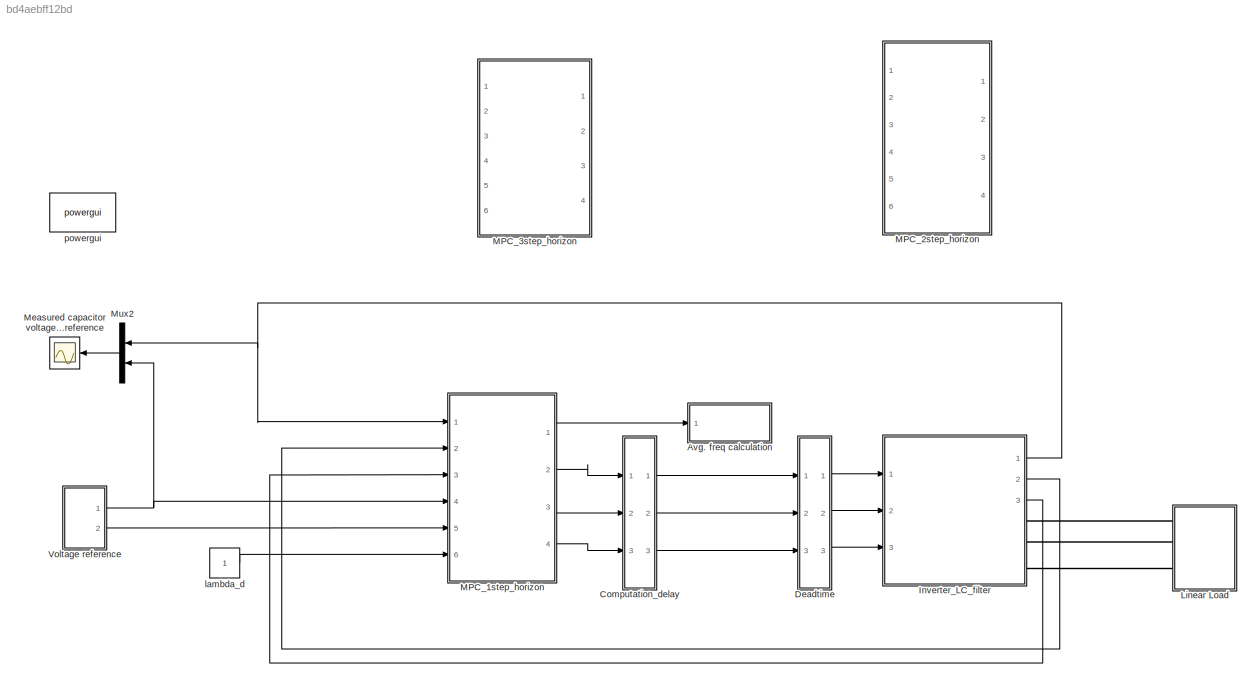
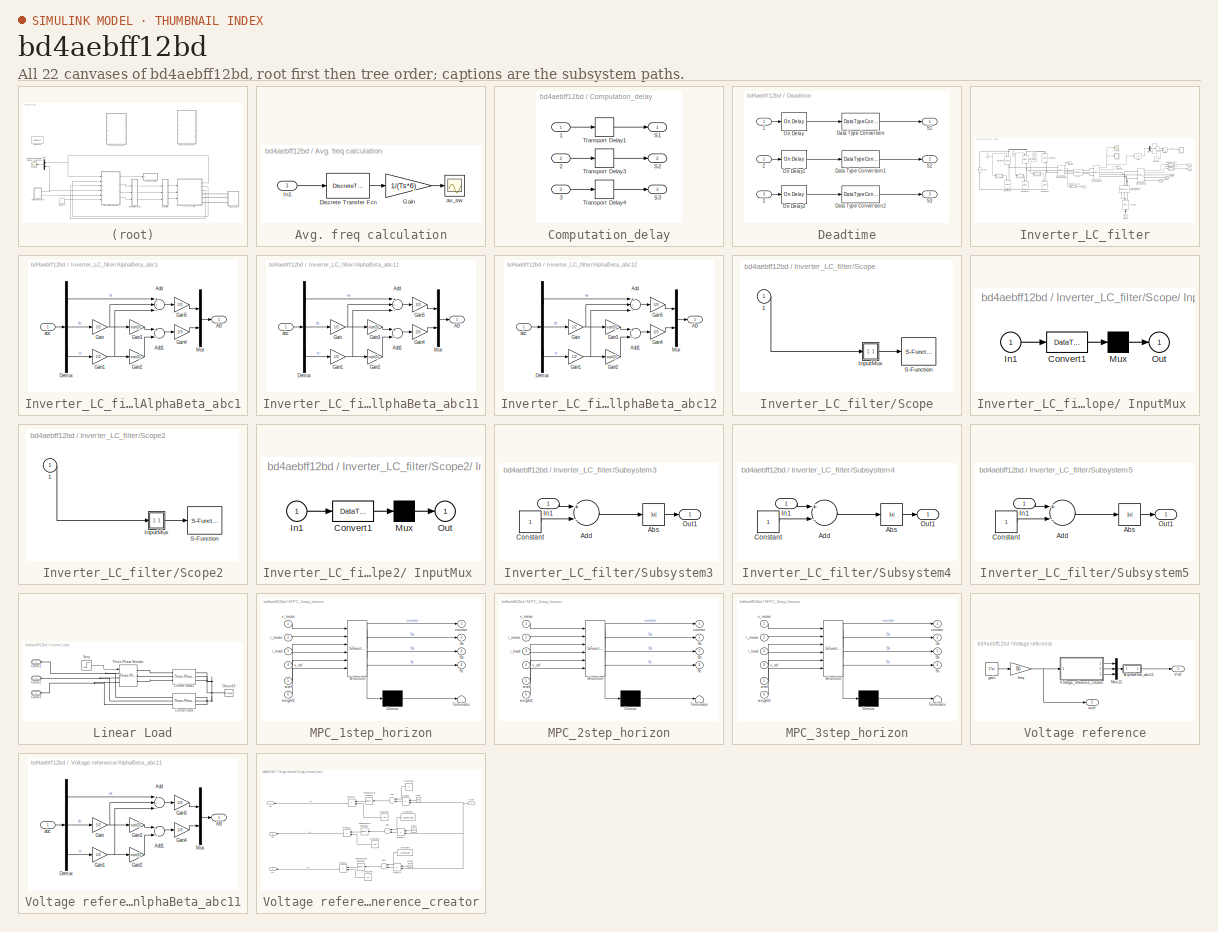
[diagram: thumbnail index - all 22 canvases of the model, root first then tree order]
MODEL slx_bd4aebff12bd
KIND model
CONFIG AbsTol = auto
CONFIG EnableMultiTasking = off
CONFIG FixedStep = 1e-6
CONFIG InitFcn = %initialization file\nclear \nRl=0.1;\nRload=60;\nL=2.4e-3;\nC=14e-6;\nwref=2*pi*50;\nVdc=700;\nTs=20e-6;\ns=tf('s');\nVac=325;\nTd=4e-6;\n\n\n% Converter states\nv0 = 0;\nv1 = 2/3*Vdc;\nv2 = 1/3*Vdc + 1j*sqrt(3)/3*Vdc;\nv3 = -1/3*Vdc + 1j*sqrt(3)/3*Vdc;\nv4 = -2/3*Vdc;\nv5 = -1/3*Vdc - 1j*sqrt(3)/3*Vdc;\nv6 = 1/3*Vdc - 1j*sqrt(3)/3*Vdc;\nv7 = 0;\nv = [v0 v1 v2 v3 v4 v5 v6 v7];\nstates = [0 0 0;1 0 0;1 1 0;0 1 0;0 1 1;0 ...<+722ch>
CONFIG MaxStep = 1
CONFIG MinStep = auto
CONFIG RelTol = 1e-3
CONFIG SampleTimeConstraint = Unconstrained
CONFIG Solver = VariableStepAuto
CONFIG SolverName = VariableStepAuto
CONFIG StartTime = 0.0
CONFIG StopTime = 0.1
BLOCK [SubSystem] Avg. freq calculation
  Ports = [1]
  RequestExecContextInheritance = off
BLOCK [DiscreteTransferFcn] Avg. freq calculation/Discrete Transfer Fcn
  Denominator = [1 -0.9998]
  InputPortMap = u0
  Numerator = [0.0002]
  Ports = [1, 1]
BLOCK [Gain] Avg. freq calculation/Gain
  Gain = 1/(Ts*6)
  OutDataTypeStr = Inherit: Inherit via internal rule
  ParamDataTypeStr = Inherit: Inherit via internal rule
  SaturateOnIntegerOverflow = off
BLOCK [Inport] Avg. freq calculation/In1
  IconDisplay = Port number
BLOCK [Scope] Avg. freq calculation/av_sw
  Floating = off
  NumInputPorts = 1
  Ports = [1]
  ScopeSpecificationString = Simulink.scopes.TimeScopeBlockCfg('CurrentConfiguration', extmgr.ConfigurationSet(extmgr.Configuration('Core','General UI',true),extmgr.Configuration('Core','Source UI',true),extmgr.Configuration('Sources','WiredSimulink',true,'DataLoggingVariableName','av_sw','DataLogging',true,'DataLoggingSaveFormat','Array'),extmgr.Configuration('Visuals','Time Domain',true,'SerializedDisplays',{struct('MinYLim...<+1502ch>
BLOCK [SubSystem] Computation_delay
  Ports = [3, 3]
  RequestExecContextInheritance = off
BLOCK [Inport] Computation_delay/1
  IconDisplay = Port number
BLOCK [Inport] Computation_delay/2
  IconDisplay = Port number
  Port = 2
BLOCK [Inport] Computation_delay/3
  IconDisplay = Port number
  Port = 3
BLOCK [Outport] Computation_delay/S1
  IconDisplay = Port number
  VectorParamsAs1DForOutWhenUnconnected = off
BLOCK [Outport] Computation_delay/S2
  IconDisplay = Port number
  Port = 2
  VectorParamsAs1DForOutWhenUnconnected = off
BLOCK [Outport] Computation_delay/S3
  IconDisplay = Port number
  Port = 3
  VectorParamsAs1DForOutWhenUnconnected = off
BLOCK [TransportDelay] Computation_delay/Transport Delay1
  DelayTime = 1*Ts
  Ports = [1, 1]
BLOCK [TransportDelay] Computation_delay/Transport Delay3
  DelayTime = 1*Ts
  Ports = [1, 1]
BLOCK [TransportDelay] Computation_delay/Transport Delay4
  DelayTime = 1*Ts
  Ports = [1, 1]
BLOCK [SubSystem] Deadtime
  Ports = [3, 3]
  RequestExecContextInheritance = off
BLOCK [Inport] Deadtime/1
  IconDisplay = Port number
BLOCK [Inport] Deadtime/2
  IconDisplay = Port number
  Port = 2
BLOCK [Inport] Deadtime/3
  IconDisplay = Port number
  Port = 3
BLOCK [DataTypeConversion] Deadtime/Data Type Conversion
  OutDataTypeStr = double
  RndMeth = Floor
  SaturateOnIntegerOverflow = off
BLOCK [DataTypeConversion] Deadtime/Data Type Conversion1
  OutDataTypeStr = double
  RndMeth = Floor
  SaturateOnIntegerOverflow = off
BLOCK [DataTypeConversion] Deadtime/Data Type Conversion2
  OutDataTypeStr = double
  RndMeth = Floor
  SaturateOnIntegerOverflow = off
BLOCK [Reference] Deadtime/On Delay  REF=powerlib_meascontrol/Logic/On Delay
  Ports = [1, 1]
  SourceBlock = powerlib_meascontrol/Logic/On Delay
  SourceProductBaseCode = PS
  SourceProductName = Simscape Electrical
  SourceType = On/Off Delay
BLOCK [Reference] Deadtime/On Delay1  REF=powerlib_meascontrol/Logic/On Delay
  Ports = [1, 1]
  SourceBlock = powerlib_meascontrol/Logic/On Delay
  SourceProductBaseCode = PS
  SourceProductName = Simscape Electrical
  SourceType = On/Off Delay
BLOCK [Reference] Deadtime/On Delay2  REF=powerlib_meascontrol/Logic/On Delay
  Ports = [1, 1]
  SourceBlock = powerlib_meascontrol/Logic/On Delay
  SourceProductBaseCode = PS
  SourceProductName = Simscape Electrical
  SourceType = On/Off Delay
BLOCK [Outport] Deadtime/S1
  IconDisplay = Port number
  VectorParamsAs1DForOutWhenUnconnected = off
BLOCK [Outport] Deadtime/S2
  IconDisplay = Port number
  Port = 2
  VectorParamsAs1DForOutWhenUnconnected = off
BLOCK [Outport] Deadtime/S3
  IconDisplay = Port number
  Port = 3
  VectorParamsAs1DForOutWhenUnconnected = off
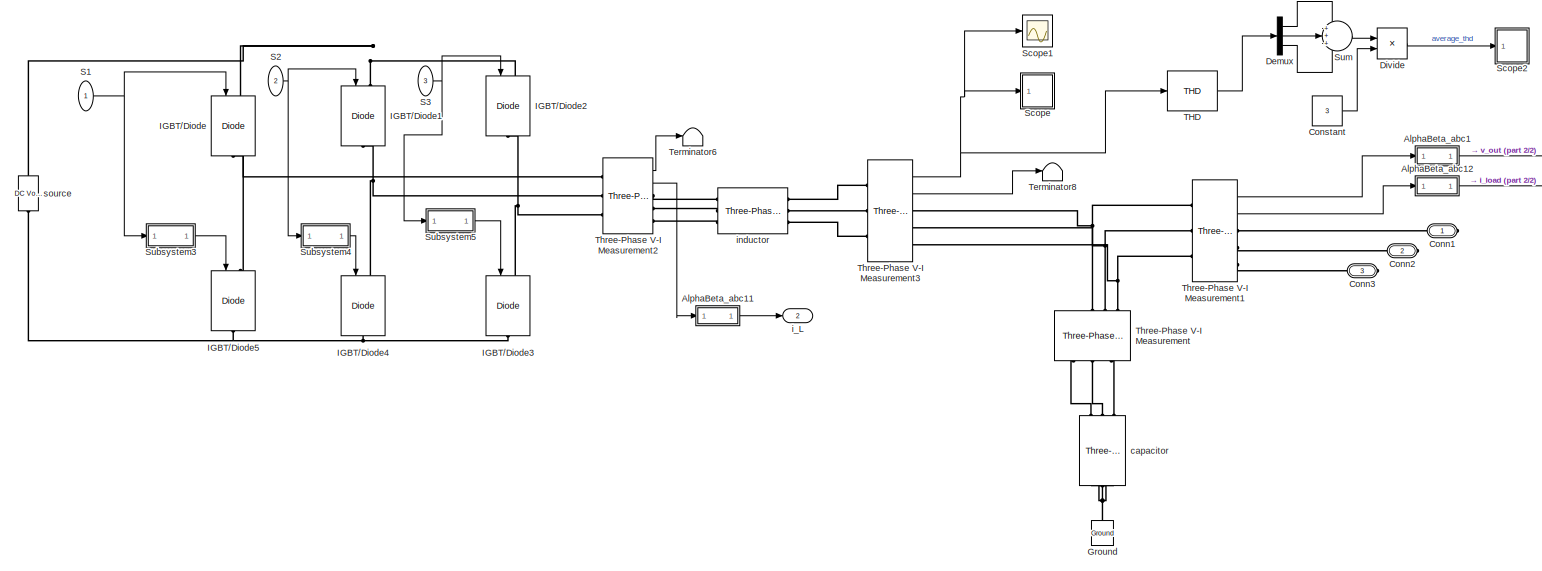
[diagram: Inverter_LC_filter - part 1/2, most of the canvas]
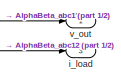
[diagram: Inverter_LC_filter - part 2/2, middle right region]
BLOCK [SubSystem] Inverter_LC_filter
  Ports = [3, 3, 0, 0, 0, 0, 3]
  RequestExecContextInheritance = off
BLOCK [SubSystem] Inverter_LC_filter/AlphaBeta_abc1
  Ports = [1, 1]
  RequestExecContextInheritance = off
BLOCK [Outport] Inverter_LC_filter/AlphaBeta_abc1/AB
  IconDisplay = Port number
  VectorParamsAs1DForOutWhenUnconnected = off
BLOCK [Sum] Inverter_LC_filter/AlphaBeta_abc1/Add
  InputSameDT = off
  Inputs = +--
  OutDataTypeStr = Inherit: Inherit via internal rule
  Ports = [3, 1]
  SaturateOnIntegerOverflow = off
BLOCK [Sum] Inverter_LC_filter/AlphaBeta_abc1/Add1
  InputSameDT = off
  Inputs = +-
  OutDataTypeStr = Inherit: Inherit via internal rule
  Ports = [2, 1]
  SaturateOnIntegerOverflow = off
BLOCK [Demux] Inverter_LC_filter/AlphaBeta_abc1/Demux
  DisplayOption = bar
  Outputs = 3
  Ports = [1, 3]
BLOCK [Gain] Inverter_LC_filter/AlphaBeta_abc1/Gain
  Gain = 1/2
  OutDataTypeStr = Inherit: Inherit via internal rule
  ParamDataTypeStr = Inherit: Inherit via internal rule
  SaturateOnIntegerOverflow = off
BLOCK [Gain] Inverter_LC_filter/AlphaBeta_abc1/Gain1
  Gain = 1/2
  OutDataTypeStr = Inherit: Inherit via internal rule
  ParamDataTypeStr = Inherit: Inherit via internal rule
  SaturateOnIntegerOverflow = off
BLOCK [Gain] Inverter_LC_filter/AlphaBeta_abc1/Gain2
  Gain = sqrt(3)
  OutDataTypeStr = Inherit: Inherit via internal rule
  ParamDataTypeStr = Inherit: Inherit via internal rule
  SaturateOnIntegerOverflow = off
BLOCK [Gain] Inverter_LC_filter/AlphaBeta_abc1/Gain3
  Gain = sqrt(3)
  OutDataTypeStr = Inherit: Inherit via internal rule
  ParamDataTypeStr = Inherit: Inherit via internal rule
  SaturateOnIntegerOverflow = off
BLOCK [Gain] Inverter_LC_filter/AlphaBeta_abc1/Gain4
  Gain = 2/3
  OutDataTypeStr = Inherit: Inherit via internal rule
  ParamDataTypeStr = Inherit: Inherit via internal rule
  SaturateOnIntegerOverflow = off
BLOCK [Gain] Inverter_LC_filter/AlphaBeta_abc1/Gain5
  Gain = 2/3
  OutDataTypeStr = Inherit: Inherit via internal rule
  ParamDataTypeStr = Inherit: Inherit via internal rule
  SaturateOnIntegerOverflow = off
BLOCK [Mux] Inverter_LC_filter/AlphaBeta_abc1/Mux
  DisplayOption = bar
  Inputs = 2
  Ports = [2, 1]
BLOCK [Inport] Inverter_LC_filter/AlphaBeta_abc1/abc
  IconDisplay = Port number
BLOCK [SubSystem] Inverter_LC_filter/AlphaBeta_abc11
  Ports = [1, 1]
  RequestExecContextInheritance = off
BLOCK [Outport] Inverter_LC_filter/AlphaBeta_abc11/AB
  IconDisplay = Port number
  VectorParamsAs1DForOutWhenUnconnected = off
BLOCK [Sum] Inverter_LC_filter/AlphaBeta_abc11/Add
  InputSameDT = off
  Inputs = +--
  OutDataTypeStr = Inherit: Inherit via internal rule
  Ports = [3, 1]
  SaturateOnIntegerOverflow = off
BLOCK [Sum] Inverter_LC_filter/AlphaBeta_abc11/Add1
  InputSameDT = off
  Inputs = +-
  OutDataTypeStr = Inherit: Inherit via internal rule
  Ports = [2, 1]
  SaturateOnIntegerOverflow = off
BLOCK [Demux] Inverter_LC_filter/AlphaBeta_abc11/Demux
  DisplayOption = bar
  Outputs = 3
  Ports = [1, 3]
BLOCK [Gain] Inverter_LC_filter/AlphaBeta_abc11/Gain
  Gain = 1/2
  OutDataTypeStr = Inherit: Inherit via internal rule
  ParamDataTypeStr = Inherit: Inherit via internal rule
  SaturateOnIntegerOverflow = off
BLOCK [Gain] Inverter_LC_filter/AlphaBeta_abc11/Gain1
  Gain = 1/2
  OutDataTypeStr = Inherit: Inherit via internal rule
  ParamDataTypeStr = Inherit: Inherit via internal rule
  SaturateOnIntegerOverflow = off
BLOCK [Gain] Inverter_LC_filter/AlphaBeta_abc11/Gain2
  Gain = sqrt(3)
  OutDataTypeStr = Inherit: Inherit via internal rule
  ParamDataTypeStr = Inherit: Inherit via internal rule
  SaturateOnIntegerOverflow = off
BLOCK [Gain] Inverter_LC_filter/AlphaBeta_abc11/Gain3
  Gain = sqrt(3)
  OutDataTypeStr = Inherit: Inherit via internal rule
  ParamDataTypeStr = Inherit: Inherit via internal rule
  SaturateOnIntegerOverflow = off
BLOCK [Gain] Inverter_LC_filter/AlphaBeta_abc11/Gain4
  Gain = 2/3
  OutDataTypeStr = Inherit: Inherit via internal rule
  ParamDataTypeStr = Inherit: Inherit via internal rule
  SaturateOnIntegerOverflow = off
BLOCK [Gain] Inverter_LC_filter/AlphaBeta_abc11/Gain5
  Gain = 2/3
  OutDataTypeStr = Inherit: Inherit via internal rule
  ParamDataTypeStr = Inherit: Inherit via internal rule
  SaturateOnIntegerOverflow = off
BLOCK [Mux] Inverter_LC_filter/AlphaBeta_abc11/Mux
  DisplayOption = bar
  Inputs = 2
  Ports = [2, 1]
BLOCK [Inport] Inverter_LC_filter/AlphaBeta_abc11/abc
  IconDisplay = Port number
BLOCK [SubSystem] Inverter_LC_filter/AlphaBeta_abc12
  Ports = [1, 1]
  RequestExecContextInheritance = off
BLOCK [Outport] Inverter_LC_filter/AlphaBeta_abc12/AB
  IconDisplay = Port number
  VectorParamsAs1DForOutWhenUnconnected = off
BLOCK [Sum] Inverter_LC_filter/AlphaBeta_abc12/Add
  InputSameDT = off
  Inputs = +--
  OutDataTypeStr = Inherit: Inherit via internal rule
  Ports = [3, 1]
  SaturateOnIntegerOverflow = off
BLOCK [Sum] Inverter_LC_filter/AlphaBeta_abc12/Add1
  InputSameDT = off
  Inputs = +-
  OutDataTypeStr = Inherit: Inherit via internal rule
  Ports = [2, 1]
  SaturateOnIntegerOverflow = off
BLOCK [Demux] Inverter_LC_filter/AlphaBeta_abc12/Demux
  DisplayOption = bar
  Outputs = 3
  Ports = [1, 3]
BLOCK [Gain] Inverter_LC_filter/AlphaBeta_abc12/Gain
  Gain = 1/2
  OutDataTypeStr = Inherit: Inherit via internal rule
  ParamDataTypeStr = Inherit: Inherit via internal rule
  SaturateOnIntegerOverflow = off
BLOCK [Gain] Inverter_LC_filter/AlphaBeta_abc12/Gain1
  Gain = 1/2
  OutDataTypeStr = Inherit: Inherit via internal rule
  ParamDataTypeStr = Inherit: Inherit via internal rule
  SaturateOnIntegerOverflow = off
BLOCK [Gain] Inverter_LC_filter/AlphaBeta_abc12/Gain2
  Gain = sqrt(3)
  OutDataTypeStr = Inherit: Inherit via internal rule
  ParamDataTypeStr = Inherit: Inherit via internal rule
  SaturateOnIntegerOverflow = off
BLOCK [Gain] Inverter_LC_filter/AlphaBeta_abc12/Gain3
  Gain = sqrt(3)
  OutDataTypeStr = Inherit: Inherit via internal rule
  ParamDataTypeStr = Inherit: Inherit via internal rule
  SaturateOnIntegerOverflow = off
BLOCK [Gain] Inverter_LC_filter/AlphaBeta_abc12/Gain4
  Gain = 2/3
  OutDataTypeStr = Inherit: Inherit via internal rule
  ParamDataTypeStr = Inherit: Inherit via internal rule
  SaturateOnIntegerOverflow = off
BLOCK [Gain] Inverter_LC_filter/AlphaBeta_abc12/Gain5
  Gain = 2/3
  OutDataTypeStr = Inherit: Inherit via internal rule
  ParamDataTypeStr = Inherit: Inherit via internal rule
  SaturateOnIntegerOverflow = off
BLOCK [Mux] Inverter_LC_filter/AlphaBeta_abc12/Mux
  DisplayOption = bar
  Inputs = 2
  Ports = [2, 1]
BLOCK [Inport] Inverter_LC_filter/AlphaBeta_abc12/abc
  IconDisplay = Port number
BLOCK [PMIOPort] Inverter_LC_filter/Conn1
  Side = Right
BLOCK [PMIOPort] Inverter_LC_filter/Conn2
  Port = 2
  Side = Right
BLOCK [PMIOPort] Inverter_LC_filter/Conn3
  Port = 3
  Side = Right
BLOCK [Constant] Inverter_LC_filter/Constant
  Value = 3
BLOCK [Demux] Inverter_LC_filter/Demux
  DisplayOption = bar
  Outputs = 3
  Ports = [1, 3]
BLOCK [Product] Inverter_LC_filter/Divide
  InputSameDT = off
  Inputs = */
  OutDataTypeStr = Inherit: Inherit via internal rule
  Ports = [2, 1]
  RndMeth = Floor
  SaturateOnIntegerOverflow = off
BLOCK [Reference] Inverter_LC_filter/Ground  REF=powerlib/Elements/Ground
  Ports = [0, 0, 0, 0, 0, 1]
  SourceBlock = powerlib/Elements/Ground
  SourceProductBaseCode = PS
  SourceProductName = Simscape Electrical
  SourceType = Ground
BLOCK [Reference] Inverter_LC_filter/IGBT//Diode  REF=powerlib/Power
Electronics/IGBT//Diode
  Ports = [1, 0, 0, 0, 0, 1, 1]
  SourceBlock = powerlib/Power\nElectronics/IGBT//Diode
  SourceProductBaseCode = PS
  SourceProductName = Simscape Electrical
  SourceType = IGBT/Diode
BLOCK [Reference] Inverter_LC_filter/IGBT//Diode1  REF=powerlib/Power
Electronics/IGBT//Diode
  Ports = [1, 0, 0, 0, 0, 1, 1]
  SourceBlock = powerlib/Power\nElectronics/IGBT//Diode
  SourceProductBaseCode = PS
  SourceProductName = Simscape Electrical
  SourceType = IGBT/Diode
BLOCK [Reference] Inverter_LC_filter/IGBT//Diode2  REF=powerlib/Power
Electronics/IGBT//Diode
  Ports = [1, 0, 0, 0, 0, 1, 1]
  SourceBlock = powerlib/Power\nElectronics/IGBT//Diode
  SourceProductBaseCode = PS
  SourceProductName = Simscape Electrical
  SourceType = IGBT/Diode
BLOCK [Reference] Inverter_LC_filter/IGBT//Diode3  REF=powerlib/Power
Electronics/IGBT//Diode
  Ports = [1, 0, 0, 0, 0, 1, 1]
  SourceBlock = powerlib/Power\nElectronics/IGBT//Diode
  SourceProductBaseCode = PS
  SourceProductName = Simscape Electrical
  SourceType = IGBT/Diode
BLOCK [Reference] Inverter_LC_filter/IGBT//Diode4  REF=powerlib/Power
Electronics/IGBT//Diode
  Ports = [1, 0, 0, 0, 0, 1, 1]
  SourceBlock = powerlib/Power\nElectronics/IGBT//Diode
  SourceProductBaseCode = PS
  SourceProductName = Simscape Electrical
  SourceType = IGBT/Diode
BLOCK [Reference] Inverter_LC_filter/IGBT//Diode5  REF=powerlib/Power
Electronics/IGBT//Diode
  Ports = [1, 0, 0, 0, 0, 1, 1]
  SourceBlock = powerlib/Power\nElectronics/IGBT//Diode
  SourceProductBaseCode = PS
  SourceProductName = Simscape Electrical
  SourceType = IGBT/Diode
BLOCK [Inport] Inverter_LC_filter/S1
  IconDisplay = Port number
BLOCK [Inport] Inverter_LC_filter/S2
  IconDisplay = Port number
  Port = 2
BLOCK [Inport] Inverter_LC_filter/S3
  IconDisplay = Port number
  Port = 3
BLOCK [SubSystem] Inverter_LC_filter/Scope
  CopyFcn = plecs('sl', 303);
  DeleteFcn = plecs('sl', 305);
  DestroyFcn = plecs('sl', 307);
  ErrorFcn = plerrorfcn
  InitFcn = plecs('sl', 314);
  LoadFcn = plecs('sl', 300);
  NameChangeFcn = plecs('sl', 310);
  OpenFcn = plecs('sl', 302);
  Ports = [1]
  PreSaveFcn = plecs('sl', 311);
  RequestExecContextInheritance = off
  StartFcn = plecs('sl', 308);
  StopFcn = plecs('sl', 309);
  UndoDeleteFcn = plecs('sl', 306);
BLOCK [SubSystem] Inverter_LC_filter/Scope/ InputMux 
  Ports = [1, 1]
  RequestExecContextInheritance = off
BLOCK [DataTypeConversion] Inverter_LC_filter/Scope/ InputMux /Convert1
BLOCK [Inport] Inverter_LC_filter/Scope/ InputMux /In1
  IconDisplay = Port number
BLOCK [Mux] Inverter_LC_filter/Scope/ InputMux /Mux
  Inputs = 1
  Ports = [1, 1]
BLOCK [Outport] Inverter_LC_filter/Scope/ InputMux /Out
  IconDisplay = Port number
BLOCK [S-Function] Inverter_LC_filter/Scope/ S-Function 
  EnableBusSupport = off
  FunctionName = plecs
  Ports = [1]
  SFcnIsStateOwnerBlock = off
  SFunctionDeploymentMode = off
BLOCK [Inport] Inverter_LC_filter/Scope/1
  IconDisplay = Port number
BLOCK [Scope] Inverter_LC_filter/Scope1
  Floating = off
  NumInputPorts = 1
  Ports = [1]
  ScopeSpecificationString = Simulink.scopes.TimeScopeBlockCfg('CurrentConfiguration', extmgr.ConfigurationSet(extmgr.Configuration('Core','General UI',true),extmgr.Configuration('Core','Source UI',true),extmgr.Configuration('Sources','WiredSimulink',true,'DataLoggingVariableName','ScopeData1'),extmgr.Configuration('Visuals','Time Domain',true,'SerializedDisplays',{struct('MinYLimReal','-408.99121','MaxYLimReal','411.3613','Y...<+1515ch>
BLOCK [SubSystem] Inverter_LC_filter/Scope2
  CopyFcn = plecs('sl', 303);
  DeleteFcn = plecs('sl', 305);
  DestroyFcn = plecs('sl', 307);
  ErrorFcn = plerrorfcn
  InitFcn = plecs('sl', 314);
  LoadFcn = plecs('sl', 300);
  NameChangeFcn = plecs('sl', 310);
  OpenFcn = plecs('sl', 302);
  Ports = [1]
  PreSaveFcn = plecs('sl', 311);
  RequestExecContextInheritance = off
  StartFcn = plecs('sl', 308);
  StopFcn = plecs('sl', 309);
  UndoDeleteFcn = plecs('sl', 306);
BLOCK [SubSystem] Inverter_LC_filter/Scope2/ InputMux 
  Ports = [1, 1]
  RequestExecContextInheritance = off
BLOCK [DataTypeConversion] Inverter_LC_filter/Scope2/ InputMux /Convert1
BLOCK [Inport] Inverter_LC_filter/Scope2/ InputMux /In1
  IconDisplay = Port number
BLOCK [Mux] Inverter_LC_filter/Scope2/ InputMux /Mux
  Inputs = 1
  Ports = [1, 1]
BLOCK [Outport] Inverter_LC_filter/Scope2/ InputMux /Out
  IconDisplay = Port number
BLOCK [S-Function] Inverter_LC_filter/Scope2/ S-Function 
  EnableBusSupport = off
  FunctionName = plecs
  Ports = [1]
  SFcnIsStateOwnerBlock = off
  SFunctionDeploymentMode = off
BLOCK [Inport] Inverter_LC_filter/Scope2/1
  IconDisplay = Port number
BLOCK [SubSystem] Inverter_LC_filter/Subsystem3
  Ports = [1, 1]
  RequestExecContextInheritance = off
BLOCK [Abs] Inverter_LC_filter/Subsystem3/Abs
  SaturateOnIntegerOverflow = off
BLOCK [Sum] Inverter_LC_filter/Subsystem3/Add
  InputSameDT = off
  Inputs = +-
  OutDataTypeStr = Inherit: Inherit via internal rule
  Ports = [2, 1]
  SaturateOnIntegerOverflow = off
BLOCK [Constant] Inverter_LC_filter/Subsystem3/Constant
BLOCK [Inport] Inverter_LC_filter/Subsystem3/In1
  IconDisplay = Port number
BLOCK [Outport] Inverter_LC_filter/Subsystem3/Out1
  IconDisplay = Port number
  VectorParamsAs1DForOutWhenUnconnected = off
BLOCK [SubSystem] Inverter_LC_filter/Subsystem4
  Ports = [1, 1]
  RequestExecContextInheritance = off
BLOCK [Abs] Inverter_LC_filter/Subsystem4/Abs
  SaturateOnIntegerOverflow = off
BLOCK [Sum] Inverter_LC_filter/Subsystem4/Add
  InputSameDT = off
  Inputs = +-
  OutDataTypeStr = Inherit: Inherit via internal rule
  Ports = [2, 1]
  SaturateOnIntegerOverflow = off
BLOCK [Constant] Inverter_LC_filter/Subsystem4/Constant
BLOCK [Inport] Inverter_LC_filter/Subsystem4/In1
  IconDisplay = Port number
BLOCK [Outport] Inverter_LC_filter/Subsystem4/Out1
  IconDisplay = Port number
  VectorParamsAs1DForOutWhenUnconnected = off
BLOCK [SubSystem] Inverter_LC_filter/Subsystem5
  Ports = [1, 1]
  RequestExecContextInheritance = off
BLOCK [Abs] Inverter_LC_filter/Subsystem5/Abs
  SaturateOnIntegerOverflow = off
BLOCK [Sum] Inverter_LC_filter/Subsystem5/Add
  InputSameDT = off
  Inputs = +-
  OutDataTypeStr = Inherit: Inherit via internal rule
  Ports = [2, 1]
  SaturateOnIntegerOverflow = off
BLOCK [Constant] Inverter_LC_filter/Subsystem5/Constant
BLOCK [Inport] Inverter_LC_filter/Subsystem5/In1
  IconDisplay = Port number
BLOCK [Outport] Inverter_LC_filter/Subsystem5/Out1
  IconDisplay = Port number
  VectorParamsAs1DForOutWhenUnconnected = off
BLOCK [Sum] Inverter_LC_filter/Sum
  IconShape = round
  InputSameDT = off
  Inputs = +++
  OutDataTypeStr = Inherit: Inherit via internal rule
  Ports = [3, 1]
  SaturateOnIntegerOverflow = off
BLOCK [Reference] Inverter_LC_filter/THD  REF=powerlib_meascontrol/Measurements/THD
  Ports = [1, 1]
  SourceBlock = powerlib_meascontrol/Measurements/THD
  SourceProductBaseCode = PS
  SourceProductName = Simscape Electrical
  SourceType = THD
BLOCK [Terminator] Inverter_LC_filter/Terminator6
BLOCK [Terminator] Inverter_LC_filter/Terminator8
BLOCK [Reference] Inverter_LC_filter/Three-Phase V-I Measurement  REF=powerlib/Measurements/Three-Phase
V-I Measurement
  Ports = [0, 2, 0, 0, 0, 3, 3]
  SourceBlock = powerlib/Measurements/Three-Phase\nV-I Measurement
  SourceProductBaseCode = PS
  SourceProductName = Simscape Electrical
  SourceType = Three-Phase VI Measurement
BLOCK [Reference] Inverter_LC_filter/Three-Phase V-I Measurement1  REF=powerlib/Measurements/Three-Phase
V-I Measurement
  Ports = [0, 2, 0, 0, 0, 3, 3]
  SourceBlock = powerlib/Measurements/Three-Phase\nV-I Measurement
  SourceProductBaseCode = PS
  SourceProductName = Simscape Electrical
  SourceType = Three-Phase VI Measurement
BLOCK [Reference] Inverter_LC_filter/Three-Phase V-I Measurement2  REF=powerlib/Measurements/Three-Phase
V-I Measurement
  Ports = [0, 2, 0, 0, 0, 3, 3]
  SourceBlock = powerlib/Measurements/Three-Phase\nV-I Measurement
  SourceProductBaseCode = PS
  SourceProductName = Simscape Electrical
  SourceType = Three-Phase VI Measurement
BLOCK [Reference] Inverter_LC_filter/Three-Phase V-I Measurement3  REF=powerlib/Measurements/Three-Phase
V-I Measurement
  Ports = [0, 2, 0, 0, 0, 3, 3]
  SourceBlock = powerlib/Measurements/Three-Phase\nV-I Measurement
  SourceProductBaseCode = PS
  SourceProductName = Simscape Electrical
  SourceType = Three-Phase VI Measurement
BLOCK [Reference] Inverter_LC_filter/capacitor  REF=powerlib/Elements/Three-Phase
Series RLC Branch
  AttributesFormatString = \n
  Ports = [0, 0, 0, 0, 0, 3, 3]
  SourceBlock = powerlib/Elements/Three-Phase\nSeries RLC Branch
  SourceProductBaseCode = PS
  SourceProductName = Simscape Electrical
  SourceType = Three-Phase Series RLC Branch
BLOCK [Outport] Inverter_LC_filter/i_L
  IconDisplay = Port number
  Port = 2
  VectorParamsAs1DForOutWhenUnconnected = off
BLOCK [Outport] Inverter_LC_filter/i_load
  IconDisplay = Port number
  Port = 3
  VectorParamsAs1DForOutWhenUnconnected = off
BLOCK [Reference] Inverter_LC_filter/inductor  REF=powerlib/Elements/Three-Phase
Series RLC Branch
  AttributesFormatString = \n
  Ports = [0, 0, 0, 0, 0, 3, 3]
  SourceBlock = powerlib/Elements/Three-Phase\nSeries RLC Branch
  SourceProductBaseCode = PS
  SourceProductName = Simscape Electrical
  SourceType = Three-Phase Series RLC Branch
BLOCK [Reference] Inverter_LC_filter/source  REF=powerlib/Electrical
Sources/DC Voltage Source
  Ports = [0, 0, 0, 0, 0, 1, 1]
  SourceBlock = powerlib/Electrical\nSources/DC Voltage Source
  SourceProductBaseCode = PS
  SourceProductName = Simscape Electrical
  SourceType = DC Voltage Source
BLOCK [Outport] Inverter_LC_filter/v_out
  IconDisplay = Port number
  VectorParamsAs1DForOutWhenUnconnected = off
BLOCK [SubSystem] Linear Load
  Ports = [0, 0, 0, 0, 0, 3]
  RequestExecContextInheritance = off
BLOCK [PMIOPort] Linear Load/Conn1
  Side = Left
BLOCK [PMIOPort] Linear Load/Conn2
  Port = 2
  Side = Left
BLOCK [PMIOPort] Linear Load/Conn3
  Port = 3
  Side = Left
BLOCK [Reference] Linear Load/Ground3  REF=powerlib/Elements/Ground
  Ports = [0, 0, 0, 0, 0, 1]
  SourceBlock = powerlib/Elements/Ground
  SourceProductBaseCode = PS
  SourceProductName = Simscape Electrical
  SourceType = Ground
BLOCK [Reference] Linear Load/Linear load  REF=powerlib/Elements/Three-Phase
Series RLC Branch
  AttributesFormatString = \n
  Ports = [0, 0, 0, 0, 0, 3, 3]
  SourceBlock = powerlib/Elements/Three-Phase\nSeries RLC Branch
  SourceProductBaseCode = PS
  SourceProductName = Simscape Electrical
  SourceType = Three-Phase Series RLC Branch
BLOCK [Reference] Linear Load/Linear load2  REF=powerlib/Elements/Three-Phase
Series RLC Branch
  AttributesFormatString = \n
  Ports = [0, 0, 0, 0, 0, 3, 3]
  SourceBlock = powerlib/Elements/Three-Phase\nSeries RLC Branch
  SourceProductBaseCode = PS
  SourceProductName = Simscape Electrical
  SourceType = Three-Phase Series RLC Branch
BLOCK [Step] Linear Load/Step
  Before = 1
  SampleTime = 0
  Time = 0.025
BLOCK [Reference] Linear Load/Three-Phase Breaker  REF=powerlib/Elements/Three-Phase Breaker
  Ports = [1, 0, 0, 0, 0, 3, 3]
  SourceBlock = powerlib/Elements/Three-Phase Breaker
  SourceProductBaseCode = PS
  SourceProductName = Simscape Electrical
  SourceType = Three-Phase Breaker
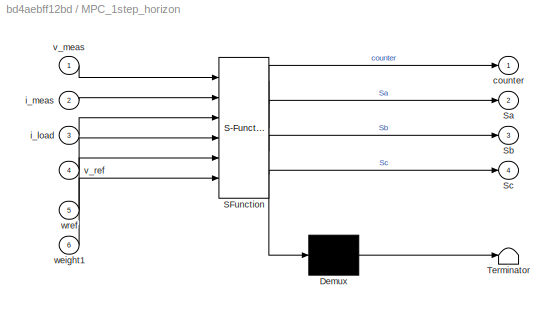
BLOCK [SubSystem] MPC_1step_horizon
  ErrorFcn = Stateflow.Translate.translate
  PermitHierarchicalResolution = ExplicitOnly
  Ports = [6, 4]
  RequestExecContextInheritance = off
  SFBlockType = MATLAB Function
  TreatAsAtomicUnit = on
BLOCK [Demux] MPC_1step_horizon/ Demux 
  Outputs = 1
  Ports = [1, 1]
BLOCK [S-Function] MPC_1step_horizon/ SFunction 
  EnableBusSupport = on
  FunctionName = sf_sfun
  Parameters = Adf,Bdf,C,states,v
  PortCounts = [6 5]
  Ports = [6, 5]
  SFcnIsStateOwnerBlock = off
  SFunctionDeploymentMode = off
  Tag = Stateflow S-Function 3
BLOCK [Terminator] MPC_1step_horizon/ Terminator 
BLOCK [Outport] MPC_1step_horizon/Sa
  IconDisplay = Port number
  Port = 2
  VectorParamsAs1DForOutWhenUnconnected = off
BLOCK [Outport] MPC_1step_horizon/Sb
  IconDisplay = Port number
  Port = 3
  VectorParamsAs1DForOutWhenUnconnected = off
BLOCK [Outport] MPC_1step_horizon/Sc
  IconDisplay = Port number
  Port = 4
  VectorParamsAs1DForOutWhenUnconnected = off
BLOCK [Outport] MPC_1step_horizon/counter
  IconDisplay = Port number
  VectorParamsAs1DForOutWhenUnconnected = off
BLOCK [Inport] MPC_1step_horizon/i_load
  IconDisplay = Port number
  Port = 3
BLOCK [Inport] MPC_1step_horizon/i_meas
  IconDisplay = Port number
  Port = 2
BLOCK [Inport] MPC_1step_horizon/v_meas
  IconDisplay = Port number
BLOCK [Inport] MPC_1step_horizon/v_ref
  IconDisplay = Port number
  Port = 4
BLOCK [Inport] MPC_1step_horizon/weight1
  IconDisplay = Port number
  Port = 6
BLOCK [Inport] MPC_1step_horizon/wref
  IconDisplay = Port number
  Port = 5
BLOCK [SubSystem] MPC_2step_horizon
  Commented = on
  ErrorFcn = Stateflow.Translate.translate
  PermitHierarchicalResolution = ExplicitOnly
  Ports = [6, 4]
  RequestExecContextInheritance = off
  SFBlockType = MATLAB Function
  TreatAsAtomicUnit = on
BLOCK [Demux] MPC_2step_horizon/ Demux 
  Outputs = 1
  Ports = [1, 1]
BLOCK [S-Function] MPC_2step_horizon/ SFunction 
  EnableBusSupport = on
  FunctionName = sf_sfun
  Parameters = Adf,Bdf,C,states,v
  PortCounts = [6 5]
  Ports = [6, 5]
  SFcnIsStateOwnerBlock = off
  SFunctionDeploymentMode = off
  Tag = Stateflow S-Function 1
BLOCK [Terminator] MPC_2step_horizon/ Terminator 
BLOCK [Outport] MPC_2step_horizon/Sa
  IconDisplay = Port number
  Port = 2
  VectorParamsAs1DForOutWhenUnconnected = off
BLOCK [Outport] MPC_2step_horizon/Sb
  IconDisplay = Port number
  Port = 3
  VectorParamsAs1DForOutWhenUnconnected = off
BLOCK [Outport] MPC_2step_horizon/Sc
  IconDisplay = Port number
  Port = 4
  VectorParamsAs1DForOutWhenUnconnected = off
BLOCK [Outport] MPC_2step_horizon/counter
  IconDisplay = Port number
  VectorParamsAs1DForOutWhenUnconnected = off
BLOCK [Inport] MPC_2step_horizon/i_load
  IconDisplay = Port number
  Port = 3
BLOCK [Inport] MPC_2step_horizon/i_meas
  IconDisplay = Port number
  Port = 2
BLOCK [Inport] MPC_2step_horizon/v_meas
  IconDisplay = Port number
BLOCK [Inport] MPC_2step_horizon/v_ref
  IconDisplay = Port number
  Port = 4
BLOCK [Inport] MPC_2step_horizon/weight1
  IconDisplay = Port number
  Port = 6
BLOCK [Inport] MPC_2step_horizon/wref
  IconDisplay = Port number
  Port = 5
BLOCK [SubSystem] MPC_3step_horizon
  Commented = on
  ErrorFcn = Stateflow.Translate.translate
  PermitHierarchicalResolution = ExplicitOnly
  Ports = [6, 4]
  RequestExecContextInheritance = off
  SFBlockType = MATLAB Function
  SystemSampleTime = Ts
  TreatAsAtomicUnit = on
BLOCK [Demux] MPC_3step_horizon/ Demux 
  Outputs = 1
  Ports = [1, 1]
BLOCK [S-Function] MPC_3step_horizon/ SFunction 
  EnableBusSupport = on
  FunctionName = sf_sfun
  Parameters = Adf,Bdf,C,states,v
  PortCounts = [6 5]
  Ports = [6, 5]
  SFcnIsStateOwnerBlock = off
  SFunctionDeploymentMode = off
  Tag = Stateflow S-Function 2
BLOCK [Terminator] MPC_3step_horizon/ Terminator 
BLOCK [Outport] MPC_3step_horizon/Sa
  IconDisplay = Port number
  Port = 2
  VectorParamsAs1DForOutWhenUnconnected = off
BLOCK [Outport] MPC_3step_horizon/Sb
  IconDisplay = Port number
  Port = 3
  VectorParamsAs1DForOutWhenUnconnected = off
BLOCK [Outport] MPC_3step_horizon/Sc
  IconDisplay = Port number
  Port = 4
  VectorParamsAs1DForOutWhenUnconnected = off
BLOCK [Outport] MPC_3step_horizon/counter
  IconDisplay = Port number
  VectorParamsAs1DForOutWhenUnconnected = off
BLOCK [Inport] MPC_3step_horizon/i_load
  IconDisplay = Port number
  Port = 3
BLOCK [Inport] MPC_3step_horizon/i_meas
  IconDisplay = Port number
  Port = 2
BLOCK [Inport] MPC_3step_horizon/v_meas
  IconDisplay = Port number
BLOCK [Inport] MPC_3step_horizon/v_ref
  IconDisplay = Port number
  Port = 4
BLOCK [Inport] MPC_3step_horizon/weight1
  IconDisplay = Port number
  Port = 6
BLOCK [Inport] MPC_3step_horizon/wref
  IconDisplay = Port number
  Port = 5
BLOCK [Scope] Measured capacitor voltage and reference 
  Floating = off
  NumInputPorts = 1
  Ports = [1]
  ScopeSpecificationString = Simulink.scopes.TimeScopeBlockCfg('CurrentConfiguration', extmgr.ConfigurationSet(extmgr.Configuration('Core','General UI',true),extmgr.Configuration('Core','Source UI',true),extmgr.Configuration('Sources','WiredSimulink',true,'DataLoggingVariableName','refs_2','DataLogging',true),extmgr.Configuration('Visuals','Time Domain',true,'SerializedDisplays',{struct('MinYLimReal','-432.90804','MaxYLimReal...<+1555ch>
BLOCK [Mux] Mux2
  DisplayOption = bar
  Inputs = 2
  Ports = [2, 1]
BLOCK [SubSystem] Voltage reference
  Ports = [0, 2]
  RequestExecContextInheritance = off
BLOCK [SubSystem] Voltage reference/AlphaBeta_abc11
  Ports = [1, 1]
  RequestExecContextInheritance = off
BLOCK [Outport] Voltage reference/AlphaBeta_abc11/AB
  IconDisplay = Port number
  VectorParamsAs1DForOutWhenUnconnected = off
BLOCK [Sum] Voltage reference/AlphaBeta_abc11/Add
  InputSameDT = off
  Inputs = +--
  OutDataTypeStr = Inherit: Inherit via internal rule
  Ports = [3, 1]
  SaturateOnIntegerOverflow = off
BLOCK [Sum] Voltage reference/AlphaBeta_abc11/Add1
  InputSameDT = off
  Inputs = +-
  OutDataTypeStr = Inherit: Inherit via internal rule
  Ports = [2, 1]
  SaturateOnIntegerOverflow = off
BLOCK [Demux] Voltage reference/AlphaBeta_abc11/Demux
  DisplayOption = bar
  Outputs = 3
  Ports = [1, 3]
BLOCK [Gain] Voltage reference/AlphaBeta_abc11/Gain
  Gain = 1/2
  OutDataTypeStr = Inherit: Inherit via internal rule
  ParamDataTypeStr = Inherit: Inherit via internal rule
  SaturateOnIntegerOverflow = off
BLOCK [Gain] Voltage reference/AlphaBeta_abc11/Gain1
  Gain = 1/2
  OutDataTypeStr = Inherit: Inherit via internal rule
  ParamDataTypeStr = Inherit: Inherit via internal rule
  SaturateOnIntegerOverflow = off
BLOCK [Gain] Voltage reference/AlphaBeta_abc11/Gain2
  Gain = sqrt(3)
  OutDataTypeStr = Inherit: Inherit via internal rule
  ParamDataTypeStr = Inherit: Inherit via internal rule
  SaturateOnIntegerOverflow = off
BLOCK [Gain] Voltage reference/AlphaBeta_abc11/Gain3
  Gain = sqrt(3)
  OutDataTypeStr = Inherit: Inherit via internal rule
  ParamDataTypeStr = Inherit: Inherit via internal rule
  SaturateOnIntegerOverflow = off
BLOCK [Gain] Voltage reference/AlphaBeta_abc11/Gain4
  Gain = 2/3
  OutDataTypeStr = Inherit: Inherit via internal rule
  ParamDataTypeStr = Inherit: Inherit via internal rule
  SaturateOnIntegerOverflow = off
BLOCK [Gain] Voltage reference/AlphaBeta_abc11/Gain5
  Gain = 2/3
  OutDataTypeStr = Inherit: Inherit via internal rule
  ParamDataTypeStr = Inherit: Inherit via internal rule
  SaturateOnIntegerOverflow = off
BLOCK [Mux] Voltage reference/AlphaBeta_abc11/Mux
  DisplayOption = bar
  Inputs = 2
  Ports = [2, 1]
BLOCK [Inport] Voltage reference/AlphaBeta_abc11/abc
  IconDisplay = Port number
BLOCK [Mux] Voltage reference/Mux12
  DisplayOption = bar
  Inputs = 3
  Ports = [3, 1]
BLOCK [SubSystem] Voltage reference/Voltage_reference_creator
  Ports = [1, 3]
  RequestExecContextInheritance = off
BLOCK [Sum] Voltage reference/Voltage_reference_creator/Add
  InputSameDT = off
  OutDataTypeStr = Inherit: Inherit via internal rule
  Ports = [2, 1]
  SaturateOnIntegerOverflow = off
BLOCK [Sum] Voltage reference/Voltage_reference_creator/Add1
  InputSameDT = off
  OutDataTypeStr = Inherit: Inherit via internal rule
  Ports = [2, 1]
  SaturateOnIntegerOverflow = off
BLOCK [Sum] Voltage reference/Voltage_reference_creator/Add2
  InputSameDT = off
  OutDataTypeStr = Inherit: Inherit via internal rule
  Ports = [2, 1]
  SaturateOnIntegerOverflow = off
BLOCK [Clock] Voltage reference/Voltage_reference_creator/Clock
BLOCK [Clock] Voltage reference/Voltage_reference_creator/Clock1
BLOCK [Clock] Voltage reference/Voltage_reference_creator/Clock2
BLOCK [Constant] Voltage reference/Voltage_reference_creator/Constant1
  Value = Vac
BLOCK [Constant] Voltage reference/Voltage_reference_creator/Constant2
  Value = 0
BLOCK [Constant] Voltage reference/Voltage_reference_creator/Constant3
  Value = Vac
BLOCK [Constant] Voltage reference/Voltage_reference_creator/Constant4
  Value = -120*pi/180
BLOCK [Constant] Voltage reference/Voltage_reference_creator/Constant5
  Value = Vac
BLOCK [Constant] Voltage reference/Voltage_reference_creator/Constant6
  Value = -240*pi/180
BLOCK [Product] Voltage reference/Voltage_reference_creator/Product
  InputSameDT = off
  OutDataTypeStr = Inherit: Inherit via internal rule
  Ports = [2, 1]
  RndMeth = Floor
  SaturateOnIntegerOverflow = off
BLOCK [Product] Voltage reference/Voltage_reference_creator/Product1
  InputSameDT = off
  OutDataTypeStr = Inherit: Inherit via internal rule
  Ports = [2, 1]
  RndMeth = Floor
  SaturateOnIntegerOverflow = off
BLOCK [Product] Voltage reference/Voltage_reference_creator/Product2
  InputSameDT = off
  OutDataTypeStr = Inherit: Inherit via internal rule
  Ports = [2, 1]
  RndMeth = Floor
  SaturateOnIntegerOverflow = off
BLOCK [Product] Voltage reference/Voltage_reference_creator/Product3
  InputSameDT = off
  OutDataTypeStr = Inherit: Inherit via internal rule
  Ports = [2, 1]
  RndMeth = Floor
  SaturateOnIntegerOverflow = off
BLOCK [Product] Voltage reference/Voltage_reference_creator/Product4
  InputSameDT = off
  OutDataTypeStr = Inherit: Inherit via internal rule
  Ports = [2, 1]
  RndMeth = Floor
  SaturateOnIntegerOverflow = off
BLOCK [Product] Voltage reference/Voltage_reference_creator/Product5
  InputSameDT = off
  OutDataTypeStr = Inherit: Inherit via internal rule
  Ports = [2, 1]
  RndMeth = Floor
  SaturateOnIntegerOverflow = off
BLOCK [Trigonometry] Voltage reference/Voltage_reference_creator/Trigonometric Function
  Ports = [1, 1]
BLOCK [Trigonometry] Voltage reference/Voltage_reference_creator/Trigonometric Function1
  Ports = [1, 1]
BLOCK [Trigonometry] Voltage reference/Voltage_reference_creator/Trigonometric Function2
  Ports = [1, 1]
BLOCK [Outport] Voltage reference/Voltage_reference_creator/va*
  IconDisplay = Port number
  VectorParamsAs1DForOutWhenUnconnected = off
BLOCK [Outport] Voltage reference/Voltage_reference_creator/vb*
  IconDisplay = Port number
  Port = 2
  VectorParamsAs1DForOutWhenUnconnected = off
BLOCK [Outport] Voltage reference/Voltage_reference_creator/vc*
  IconDisplay = Port number
  Port = 3
  VectorParamsAs1DForOutWhenUnconnected = off
BLOCK [Inport] Voltage reference/Voltage_reference_creator/wref
  IconDisplay = Port number
BLOCK [Outport] Voltage reference/Vref
  IconDisplay = Port number
  VectorParamsAs1DForOutWhenUnconnected = off
BLOCK [Gain] Voltage reference/freq
  Gain = 50
  OutDataTypeStr = Inherit: Inherit via internal rule
  ParamDataTypeStr = Inherit: Inherit via internal rule
  SaturateOnIntegerOverflow = off
BLOCK [Constant] Voltage reference/gain
  Value = 2*pi
BLOCK [Outport] Voltage reference/wref
  IconDisplay = Port number
  Port = 2
  VectorParamsAs1DForOutWhenUnconnected = off
BLOCK [Constant] lambda_d
BLOCK [Reference] powergui  REF=powerlib/powergui
  Ports = []
  Priority = 1
  SourceBlock = powerlib/powergui
  SourceProductBaseCode = PS
  SourceProductName = Simscape Electrical
  SourceType = PSB option menu block
LINE Avg. freq calculation/Discrete Transfer Fcn:1 -> Avg. freq calculation/Gain:1
LINE Avg. freq calculation/Gain:1 -> Avg. freq calculation/av_sw:1
LINE Avg. freq calculation/In1:1 -> Avg. freq calculation/Discrete Transfer Fcn:1
LINE Computation_delay/1:1 -> Computation_delay/Transport Delay1:1
LINE Computation_delay/2:1 -> Computation_delay/Transport Delay3:1
LINE Computation_delay/3:1 -> Computation_delay/Transport Delay4:1
LINE Computation_delay/Transport Delay1:1 -> Computation_delay/S1:1
LINE Computation_delay/Transport Delay3:1 -> Computation_delay/S2:1
LINE Computation_delay/Transport Delay4:1 -> Computation_delay/S3:1
LINE Computation_delay:1 -> Deadtime:1
LINE Computation_delay:2 -> Deadtime:2
LINE Computation_delay:3 -> Deadtime:3
LINE Deadtime/1:1 -> Deadtime/On Delay:1
LINE Deadtime/2:1 -> Deadtime/On Delay1:1
LINE Deadtime/3:1 -> Deadtime/On Delay2:1
LINE Deadtime/Data Type Conversion1:1 -> Deadtime/S2:1
LINE Deadtime/Data Type Conversion2:1 -> Deadtime/S3:1
LINE Deadtime/Data Type Conversion:1 -> Deadtime/S1:1
LINE Deadtime/On Delay1:1 -> Deadtime/Data Type Conversion1:1
LINE Deadtime/On Delay2:1 -> Deadtime/Data Type Conversion2:1
LINE Deadtime/On Delay:1 -> Deadtime/Data Type Conversion:1
LINE Deadtime:1 -> Inverter_LC_filter:1
LINE Deadtime:2 -> Inverter_LC_filter:2
LINE Deadtime:3 -> Inverter_LC_filter:3
LINE Inverter_LC_filter/AlphaBeta_abc1/Add1:1 -> Inverter_LC_filter/AlphaBeta_abc1/Gain4:1
LINE Inverter_LC_filter/AlphaBeta_abc1/Add:1 -> Inverter_LC_filter/AlphaBeta_abc1/Gain5:1
LINE Inverter_LC_filter/AlphaBeta_abc1/Demux:1 -> Inverter_LC_filter/AlphaBeta_abc1/Add:1
LINE Inverter_LC_filter/AlphaBeta_abc1/Demux:2 -> Inverter_LC_filter/AlphaBeta_abc1/Gain:1
LINE Inverter_LC_filter/AlphaBeta_abc1/Demux:3 -> Inverter_LC_filter/AlphaBeta_abc1/Gain1:1
NET Inverter_LC_filter/AlphaBeta_abc1/Gain1:1 -> Inverter_LC_filter/AlphaBeta_abc1/Add:3, Inverter_LC_filter/AlphaBeta_abc1/Gain2:1
LINE Inverter_LC_filter/AlphaBeta_abc1/Gain2:1 -> Inverter_LC_filter/AlphaBeta_abc1/Add1:2
LINE Inverter_LC_filter/AlphaBeta_abc1/Gain3:1 -> Inverter_LC_filter/AlphaBeta_abc1/Add1:1
LINE Inverter_LC_filter/AlphaBeta_abc1/Gain4:1 -> Inverter_LC_filter/AlphaBeta_abc1/Mux:2
LINE Inverter_LC_filter/AlphaBeta_abc1/Gain5:1 -> Inverter_LC_filter/AlphaBeta_abc1/Mux:1
NET Inverter_LC_filter/AlphaBeta_abc1/Gain:1 -> Inverter_LC_filter/AlphaBeta_abc1/Add:2, Inverter_LC_filter/AlphaBeta_abc1/Gain3:1
LINE Inverter_LC_filter/AlphaBeta_abc1/Mux:1 -> Inverter_LC_filter/AlphaBeta_abc1/AB:1
LINE Inverter_LC_filter/AlphaBeta_abc1/abc:1 -> Inverter_LC_filter/AlphaBeta_abc1/Demux:1
LINE Inverter_LC_filter/AlphaBeta_abc11/Add1:1 -> Inverter_LC_filter/AlphaBeta_abc11/Gain4:1
LINE Inverter_LC_filter/AlphaBeta_abc11/Add:1 -> Inverter_LC_filter/AlphaBeta_abc11/Gain5:1
LINE Inverter_LC_filter/AlphaBeta_abc11/Demux:1 -> Inverter_LC_filter/AlphaBeta_abc11/Add:1
LINE Inverter_LC_filter/AlphaBeta_abc11/Demux:2 -> Inverter_LC_filter/AlphaBeta_abc11/Gain:1
LINE Inverter_LC_filter/AlphaBeta_abc11/Demux:3 -> Inverter_LC_filter/AlphaBeta_abc11/Gain1:1
NET Inverter_LC_filter/AlphaBeta_abc11/Gain1:1 -> Inverter_LC_filter/AlphaBeta_abc11/Add:3, Inverter_LC_filter/AlphaBeta_abc11/Gain2:1
LINE Inverter_LC_filter/AlphaBeta_abc11/Gain2:1 -> Inverter_LC_filter/AlphaBeta_abc11/Add1:2
LINE Inverter_LC_filter/AlphaBeta_abc11/Gain3:1 -> Inverter_LC_filter/AlphaBeta_abc11/Add1:1
LINE Inverter_LC_filter/AlphaBeta_abc11/Gain4:1 -> Inverter_LC_filter/AlphaBeta_abc11/Mux:2
LINE Inverter_LC_filter/AlphaBeta_abc11/Gain5:1 -> Inverter_LC_filter/AlphaBeta_abc11/Mux:1
NET Inverter_LC_filter/AlphaBeta_abc11/Gain:1 -> Inverter_LC_filter/AlphaBeta_abc11/Add:2, Inverter_LC_filter/AlphaBeta_abc11/Gain3:1
LINE Inverter_LC_filter/AlphaBeta_abc11/Mux:1 -> Inverter_LC_filter/AlphaBeta_abc11/AB:1
LINE Inverter_LC_filter/AlphaBeta_abc11/abc:1 -> Inverter_LC_filter/AlphaBeta_abc11/Demux:1
LINE Inverter_LC_filter/AlphaBeta_abc11:1 -> Inverter_LC_filter/i_L:1
LINE Inverter_LC_filter/AlphaBeta_abc12/Add1:1 -> Inverter_LC_filter/AlphaBeta_abc12/Gain4:1
LINE Inverter_LC_filter/AlphaBeta_abc12/Add:1 -> Inverter_LC_filter/AlphaBeta_abc12/Gain5:1
LINE Inverter_LC_filter/AlphaBeta_abc12/Demux:1 -> Inverter_LC_filter/AlphaBeta_abc12/Add:1
LINE Inverter_LC_filter/AlphaBeta_abc12/Demux:2 -> Inverter_LC_filter/AlphaBeta_abc12/Gain:1
LINE Inverter_LC_filter/AlphaBeta_abc12/Demux:3 -> Inverter_LC_filter/AlphaBeta_abc12/Gain1:1
NET Inverter_LC_filter/AlphaBeta_abc12/Gain1:1 -> Inverter_LC_filter/AlphaBeta_abc12/Add:3, Inverter_LC_filter/AlphaBeta_abc12/Gain2:1
LINE Inverter_LC_filter/AlphaBeta_abc12/Gain2:1 -> Inverter_LC_filter/AlphaBeta_abc12/Add1:2
LINE Inverter_LC_filter/AlphaBeta_abc12/Gain3:1 -> Inverter_LC_filter/AlphaBeta_abc12/Add1:1
LINE Inverter_LC_filter/AlphaBeta_abc12/Gain4:1 -> Inverter_LC_filter/AlphaBeta_abc12/Mux:2
LINE Inverter_LC_filter/AlphaBeta_abc12/Gain5:1 -> Inverter_LC_filter/AlphaBeta_abc12/Mux:1
NET Inverter_LC_filter/AlphaBeta_abc12/Gain:1 -> Inverter_LC_filter/AlphaBeta_abc12/Add:2, Inverter_LC_filter/AlphaBeta_abc12/Gain3:1
LINE Inverter_LC_filter/AlphaBeta_abc12/Mux:1 -> Inverter_LC_filter/AlphaBeta_abc12/AB:1
LINE Inverter_LC_filter/AlphaBeta_abc12/abc:1 -> Inverter_LC_filter/AlphaBeta_abc12/Demux:1
LINE Inverter_LC_filter/AlphaBeta_abc12:1 -> Inverter_LC_filter/i_load:1
LINE Inverter_LC_filter/AlphaBeta_abc1:1 -> Inverter_LC_filter/v_out:1
LINE Inverter_LC_filter/Constant:1 -> Inverter_LC_filter/Divide:2
LINE Inverter_LC_filter/Demux:1 -> Inverter_LC_filter/Sum:1
LINE Inverter_LC_filter/Demux:2 -> Inverter_LC_filter/Sum:2
LINE Inverter_LC_filter/Demux:3 -> Inverter_LC_filter/Sum:3
LINE Inverter_LC_filter/Divide:1 -> Inverter_LC_filter/Scope2:1
NET Inverter_LC_filter/S1:1 -> Inverter_LC_filter/IGBT//Diode:1, Inverter_LC_filter/Subsystem3:1
NET Inverter_LC_filter/S2:1 -> Inverter_LC_filter/IGBT//Diode1:1, Inverter_LC_filter/Subsystem4:1
NET Inverter_LC_filter/S3:1 -> Inverter_LC_filter/IGBT//Diode2:1, Inverter_LC_filter/Subsystem5:1
LINE Inverter_LC_filter/Scope/ InputMux /Convert1:1 -> Inverter_LC_filter/Scope/ InputMux /Mux:1
LINE Inverter_LC_filter/Scope/ InputMux /In1:1 -> Inverter_LC_filter/Scope/ InputMux /Convert1:1
LINE Inverter_LC_filter/Scope/ InputMux /Mux:1 -> Inverter_LC_filter/Scope/ InputMux /Out:1
LINE Inverter_LC_filter/Scope/ InputMux :1 -> Inverter_LC_filter/Scope/ S-Function :1
LINE Inverter_LC_filter/Scope/1:1 -> Inverter_LC_filter/Scope/ InputMux :1
LINE Inverter_LC_filter/Scope2/ InputMux /Convert1:1 -> Inverter_LC_filter/Scope2/ InputMux /Mux:1
LINE Inverter_LC_filter/Scope2/ InputMux /In1:1 -> Inverter_LC_filter/Scope2/ InputMux /Convert1:1
LINE Inverter_LC_filter/Scope2/ InputMux /Mux:1 -> Inverter_LC_filter/Scope2/ InputMux /Out:1
LINE Inverter_LC_filter/Scope2/ InputMux :1 -> Inverter_LC_filter/Scope2/ S-Function :1
LINE Inverter_LC_filter/Scope2/1:1 -> Inverter_LC_filter/Scope2/ InputMux :1
LINE Inverter_LC_filter/Subsystem3/Abs:1 -> Inverter_LC_filter/Subsystem3/Out1:1
LINE Inverter_LC_filter/Subsystem3/Add:1 -> Inverter_LC_filter/Subsystem3/Abs:1
LINE Inverter_LC_filter/Subsystem3/Constant:1 -> Inverter_LC_filter/Subsystem3/Add:2
LINE Inverter_LC_filter/Subsystem3/In1:1 -> Inverter_LC_filter/Subsystem3/Add:1
LINE Inverter_LC_filter/Subsystem3:1 -> Inverter_LC_filter/IGBT//Diode5:1
LINE Inverter_LC_filter/Subsystem4/Abs:1 -> Inverter_LC_filter/Subsystem4/Out1:1
LINE Inverter_LC_filter/Subsystem4/Add:1 -> Inverter_LC_filter/Subsystem4/Abs:1
LINE Inverter_LC_filter/Subsystem4/Constant:1 -> Inverter_LC_filter/Subsystem4/Add:2
LINE Inverter_LC_filter/Subsystem4/In1:1 -> Inverter_LC_filter/Subsystem4/Add:1
LINE Inverter_LC_filter/Subsystem4:1 -> Inverter_LC_filter/IGBT//Diode4:1
LINE Inverter_LC_filter/Subsystem5/Abs:1 -> Inverter_LC_filter/Subsystem5/Out1:1
LINE Inverter_LC_filter/Subsystem5/Add:1 -> Inverter_LC_filter/Subsystem5/Abs:1
LINE Inverter_LC_filter/Subsystem5/Constant:1 -> Inverter_LC_filter/Subsystem5/Add:2
LINE Inverter_LC_filter/Subsystem5/In1:1 -> Inverter_LC_filter/Subsystem5/Add:1
LINE Inverter_LC_filter/Subsystem5:1 -> Inverter_LC_filter/IGBT//Diode3:1
LINE Inverter_LC_filter/Sum:1 -> Inverter_LC_filter/Divide:1
LINE Inverter_LC_filter/THD:1 -> Inverter_LC_filter/Demux:1
LINE Inverter_LC_filter/Three-Phase V-I Measurement1:1 -> Inverter_LC_filter/AlphaBeta_abc1:1
LINE Inverter_LC_filter/Three-Phase V-I Measurement1:2 -> Inverter_LC_filter/AlphaBeta_abc12:1
LINE Inverter_LC_filter/Three-Phase V-I Measurement2:1 -> Inverter_LC_filter/Terminator6:1
LINE Inverter_LC_filter/Three-Phase V-I Measurement2:2 -> Inverter_LC_filter/AlphaBeta_abc11:1
NET Inverter_LC_filter/Three-Phase V-I Measurement3:1 -> Inverter_LC_filter/Scope1:1, Inverter_LC_filter/Scope:1, Inverter_LC_filter/THD:1
LINE Inverter_LC_filter/Three-Phase V-I Measurement3:2 -> Inverter_LC_filter/Terminator8:1
NET Inverter_LC_filter:1 -> MPC_1step_horizon:1, Mux2:1
LINE Inverter_LC_filter:2 -> MPC_1step_horizon:2
LINE Inverter_LC_filter:3 -> MPC_1step_horizon:3
LINE Linear Load/Step:1 -> Linear Load/Three-Phase Breaker:1
LINE MPC_1step_horizon:1 -> Avg. freq calculation:1
LINE MPC_1step_horizon:2 -> Computation_delay:1
LINE MPC_1step_horizon:3 -> Computation_delay:2
LINE MPC_1step_horizon:4 -> Computation_delay:3
LINE Mux2:1 -> Measured capacitor voltage and reference :1
LINE Voltage reference/AlphaBeta_abc11/Add1:1 -> Voltage reference/AlphaBeta_abc11/Gain4:1
LINE Voltage reference/AlphaBeta_abc11/Add:1 -> Voltage reference/AlphaBeta_abc11/Gain5:1
LINE Voltage reference/AlphaBeta_abc11/Demux:1 -> Voltage reference/AlphaBeta_abc11/Add:1
LINE Voltage reference/AlphaBeta_abc11/Demux:2 -> Voltage reference/AlphaBeta_abc11/Gain:1
LINE Voltage reference/AlphaBeta_abc11/Demux:3 -> Voltage reference/AlphaBeta_abc11/Gain1:1
NET Voltage reference/AlphaBeta_abc11/Gain1:1 -> Voltage reference/AlphaBeta_abc11/Add:3, Voltage reference/AlphaBeta_abc11/Gain2:1
LINE Voltage reference/AlphaBeta_abc11/Gain2:1 -> Voltage reference/AlphaBeta_abc11/Add1:2
LINE Voltage reference/AlphaBeta_abc11/Gain3:1 -> Voltage reference/AlphaBeta_abc11/Add1:1
LINE Voltage reference/AlphaBeta_abc11/Gain4:1 -> Voltage reference/AlphaBeta_abc11/Mux:2
LINE Voltage reference/AlphaBeta_abc11/Gain5:1 -> Voltage reference/AlphaBeta_abc11/Mux:1
NET Voltage reference/AlphaBeta_abc11/Gain:1 -> Voltage reference/AlphaBeta_abc11/Add:2, Voltage reference/AlphaBeta_abc11/Gain3:1
LINE Voltage reference/AlphaBeta_abc11/Mux:1 -> Voltage reference/AlphaBeta_abc11/AB:1
LINE Voltage reference/AlphaBeta_abc11/abc:1 -> Voltage reference/AlphaBeta_abc11/Demux:1
LINE Voltage reference/AlphaBeta_abc11:1 -> Voltage reference/Vref:1
LINE Voltage reference/Mux12:1 -> Voltage reference/AlphaBeta_abc11:1
LINE Voltage reference/Voltage_reference_creator/Add1:1 -> Voltage reference/Voltage_reference_creator/Trigonometric Function1:1
LINE Voltage reference/Voltage_reference_creator/Add2:1 -> Voltage reference/Voltage_reference_creator/Trigonometric Function2:1
LINE Voltage reference/Voltage_reference_creator/Add:1 -> Voltage reference/Voltage_reference_creator/Trigonometric Function:1
LINE Voltage reference/Voltage_reference_creator/Clock1:1 -> Voltage reference/Voltage_reference_creator/Product2:1
LINE Voltage reference/Voltage_reference_creator/Clock2:1 -> Voltage reference/Voltage_reference_creator/Product4:1
LINE Voltage reference/Voltage_reference_creator/Clock:1 -> Voltage reference/Voltage_reference_creator/Product:1
LINE Voltage reference/Voltage_reference_creator/Constant1:1 -> Voltage reference/Voltage_reference_creator/Product1:2
LINE Voltage reference/Voltage_reference_creator/Constant2:1 -> Voltage reference/Voltage_reference_creator/Add:1
LINE Voltage reference/Voltage_reference_creator/Constant3:1 -> Voltage reference/Voltage_reference_creator/Product3:2
LINE Voltage reference/Voltage_reference_creator/Constant4:1 -> Voltage reference/Voltage_reference_creator/Add1:1
LINE Voltage reference/Voltage_reference_creator/Constant5:1 -> Voltage reference/Voltage_reference_creator/Product5:2
LINE Voltage reference/Voltage_reference_creator/Constant6:1 -> Voltage reference/Voltage_reference_creator/Add2:1
LINE Voltage reference/Voltage_reference_creator/Product1:1 -> Voltage reference/Voltage_reference_creator/va*:1
LINE Voltage reference/Voltage_reference_creator/Product2:1 -> Voltage reference/Voltage_reference_creator/Add1:2
LINE Voltage reference/Voltage_reference_creator/Product3:1 -> Voltage reference/Voltage_reference_creator/vb*:1
LINE Voltage reference/Voltage_reference_creator/Product4:1 -> Voltage reference/Voltage_reference_creator/Add2:2
LINE Voltage reference/Voltage_reference_creator/Product5:1 -> Voltage reference/Voltage_reference_creator/vc*:1
LINE Voltage reference/Voltage_reference_creator/Product:1 -> Voltage reference/Voltage_reference_creator/Add:2
LINE Voltage reference/Voltage_reference_creator/Trigonometric Function1:1 -> Voltage reference/Voltage_reference_creator/Product3:1
LINE Voltage reference/Voltage_reference_creator/Trigonometric Function2:1 -> Voltage reference/Voltage_reference_creator/Product5:1
LINE Voltage reference/Voltage_reference_creator/Trigonometric Function:1 -> Voltage reference/Voltage_reference_creator/Product1:1
NET Voltage reference/Voltage_reference_creator/wref:1 -> Voltage reference/Voltage_reference_creator/Product2:2, Voltage reference/Voltage_reference_creator/Product4:2, Voltage reference/Voltage_reference_creator/Product:2
LINE Voltage reference/Voltage_reference_creator:1 -> Voltage reference/Mux12:1
LINE Voltage reference/Voltage_reference_creator:2 -> Voltage reference/Mux12:2
LINE Voltage reference/Voltage_reference_creator:3 -> Voltage reference/Mux12:3
NET Voltage reference/freq:1 -> Voltage reference/Voltage_reference_creator:1, Voltage reference/wref:1
LINE Voltage reference/gain:1 -> Voltage reference/freq:1
NET Voltage reference:1 -> MPC_1step_horizon:4, Mux2:2
LINE Voltage reference:2 -> MPC_1step_horizon:5
LINE lambda_d:1 -> MPC_1step_horizon:6
PLINE Inverter_LC_filter/Conn1:RConn1 -- Inverter_LC_filter/Three-Phase V-I Measurement1:RConn1
PLINE Inverter_LC_filter/Conn2:RConn1 -- Inverter_LC_filter/Three-Phase V-I Measurement1:RConn2
PLINE Inverter_LC_filter/Conn3:RConn1 -- Inverter_LC_filter/Three-Phase V-I Measurement1:RConn3
PNET net1: Inverter_LC_filter/Ground:LConn1 -- Inverter_LC_filter/capacitor:RConn1 -- Inverter_LC_filter/capacitor:RConn2 -- Inverter_LC_filter/capacitor:RConn3
PNET net2: Inverter_LC_filter/IGBT//Diode1:LConn1 -- Inverter_LC_filter/IGBT//Diode2:LConn1 -- Inverter_LC_filter/IGBT//Diode:LConn1 -- Inverter_LC_filter/source:RConn1
PNET net3: Inverter_LC_filter/IGBT//Diode1:RConn1 -- Inverter_LC_filter/IGBT//Diode4:LConn1 -- Inverter_LC_filter/Three-Phase V-I Measurement2:LConn2
PNET net4: Inverter_LC_filter/IGBT//Diode2:RConn1 -- Inverter_LC_filter/IGBT//Diode3:LConn1 -- Inverter_LC_filter/Three-Phase V-I Measurement2:LConn3
PNET net5: Inverter_LC_filter/IGBT//Diode3:RConn1 -- Inverter_LC_filter/IGBT//Diode4:RConn1 -- Inverter_LC_filter/IGBT//Diode5:RConn1 -- Inverter_LC_filter/source:LConn1
PNET net6: Inverter_LC_filter/IGBT//Diode5:LConn1 -- Inverter_LC_filter/IGBT//Diode:RConn1 -- Inverter_LC_filter/Three-Phase V-I Measurement2:LConn1
PNET net7: Inverter_LC_filter/Three-Phase V-I Measurement1:LConn1 -- Inverter_LC_filter/Three-Phase V-I Measurement3:RConn1 -- Inverter_LC_filter/Three-Phase V-I Measurement:RConn1
PNET net8: Inverter_LC_filter/Three-Phase V-I Measurement1:LConn2 -- Inverter_LC_filter/Three-Phase V-I Measurement3:RConn2 -- Inverter_LC_filter/Three-Phase V-I Measurement:RConn2
PNET net9: Inverter_LC_filter/Three-Phase V-I Measurement1:LConn3 -- Inverter_LC_filter/Three-Phase V-I Measurement3:RConn3 -- Inverter_LC_filter/Three-Phase V-I Measurement:RConn3
PLINE Inverter_LC_filter/Three-Phase V-I Measurement2:RConn1 -- Inverter_LC_filter/inductor:LConn1
PLINE Inverter_LC_filter/Three-Phase V-I Measurement2:RConn2 -- Inverter_LC_filter/inductor:LConn2
PLINE Inverter_LC_filter/Three-Phase V-I Measurement2:RConn3 -- Inverter_LC_filter/inductor:LConn3
PLINE Inverter_LC_filter/Three-Phase V-I Measurement3:LConn1 -- Inverter_LC_filter/inductor:RConn1
PLINE Inverter_LC_filter/Three-Phase V-I Measurement3:LConn2 -- Inverter_LC_filter/inductor:RConn2
PLINE Inverter_LC_filter/Three-Phase V-I Measurement3:LConn3 -- Inverter_LC_filter/inductor:RConn3
PLINE Inverter_LC_filter/Three-Phase V-I Measurement:LConn1 -- Inverter_LC_filter/capacitor:LConn1
PLINE Inverter_LC_filter/Three-Phase V-I Measurement:LConn2 -- Inverter_LC_filter/capacitor:LConn2
PLINE Inverter_LC_filter/Three-Phase V-I Measurement:LConn3 -- Inverter_LC_filter/capacitor:LConn3
PLINE Inverter_LC_filter:RConn1 -- Linear Load:LConn1
PLINE Inverter_LC_filter:RConn2 -- Linear Load:LConn2
PLINE Inverter_LC_filter:RConn3 -- Linear Load:LConn3
PNET net10: Linear Load/Conn1:RConn1 -- Linear Load/Linear load:LConn1 -- Linear Load/Three-Phase Breaker:LConn1
PNET net11: Linear Load/Conn2:RConn1 -- Linear Load/Linear load:LConn2 -- Linear Load/Three-Phase Breaker:LConn2
PNET net12: Linear Load/Conn3:RConn1 -- Linear Load/Linear load:LConn3 -- Linear Load/Three-Phase Breaker:LConn3
PNET net13: Linear Load/Ground3:LConn1 -- Linear Load/Linear load2:RConn1 -- Linear Load/Linear load2:RConn2 -- Linear Load/Linear load2:RConn3 -- Linear Load/Linear load:RConn1 -- Linear Load/Linear load:RConn2 -- Linear Load/Linear load:RConn3
PLINE Linear Load/Linear load2:LConn1 -- Linear Load/Three-Phase Breaker:RConn1
PLINE Linear Load/Linear load2:LConn2 -- Linear Load/Three-Phase Breaker:RConn2
PLINE Linear Load/Linear load2:LConn3 -- Linear Load/Three-Phase Breaker:RConn3
note: NET lines group one-source signal fan-out (src -> all destinations, sorted); 1:1 wires keep LINE; PNET lines group multi-terminal physical nets as a canonical sorted terminal list (undirected conserving connections); 2-terminal nets keep the pairwise PLINE form
CHART MPC_2step_horizon states=1 transitions=1
  STATE_LABEL 'eML_blk_kernel()'
  STATE_LABEL 'SCRIPT:\nfunction [counter,Sa,Sb,Sc] = fcn(Adf,Bdf,v,states,v_meas,i_meas,i_load, v_ref, C, wref, weight1)\n%#codegen\npersistent vc_old ift_old x_old v_ref_old v_ref_old2\n% Initialize values\nif isempty(vc_old), vc_old = 0+1j*0; end\nif isempty(ift_old), ift_old = 0+1j*0; end\nif isempty(x_old), x_old = 1; end\nif isempty(v_ref_old), v_ref_old = 0+1j*0; end\nif isempty(v_ref_old2), v_ref_old2 = 0+1j*0; e...<+1749ch>'
CHART MPC_3step_horizon states=1 transitions=1
  STATE_LABEL 'eML_blk_kernel()'
  STATE_LABEL 'SCRIPT:\nfunction [counter,Sa,Sb,Sc] = fcn(Adf,Bdf,v,states,v_meas,i_meas,i_load, v_ref, C, wref, weight1)\n%#codegen\npersistent vc_old ift_old x_old v_ref_old v_ref_old2 \n% Initialize values\nif isempty(vc_old), vc_old = 0+1j*0; end\nif isempty(ift_old), ift_old = 0+1j*0; end\nif isempty(x_old), x_old = 1; end\nif isempty(v_ref_old), v_ref_old = 0+1j*0; end\nif isempty(v_ref_old2), v_ref_old2 = 0+1j*0; ...<+2324ch>'
CHART MPC_1step_horizon states=1 transitions=1
  STATE_LABEL 'eML_blk_kernel()'
  STATE_LABEL 'SCRIPT:\nfunction [counter,Sa,Sb,Sc] = fcn(Adf,Bdf,v,states,v_meas,i_meas,i_load, v_ref, C, wref, weight1)\n%#codegen\npersistent vc_old ift_old x_old \n% Initialize values\nif isempty(vc_old), vc_old = 0+1j*0; end\nif isempty(ift_old), ift_old = 0+1j*0; end\nif isempty(x_old), x_old = 1; end\n\ng = zeros(1,8);\n\nv_ref = v_ref(1) + 1j*v_ref(2);\n\nv_meas = v_meas(1) + 1j*v_meas(2);\ni_meas = i_meas(1) + 1j*i_m...<+913ch>'
